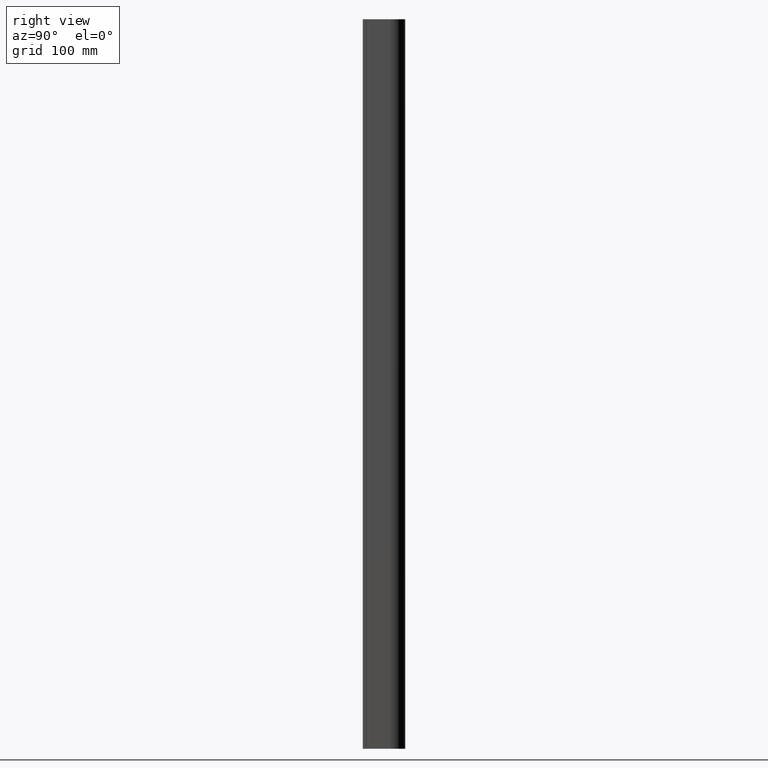
[diagram: clean part render]
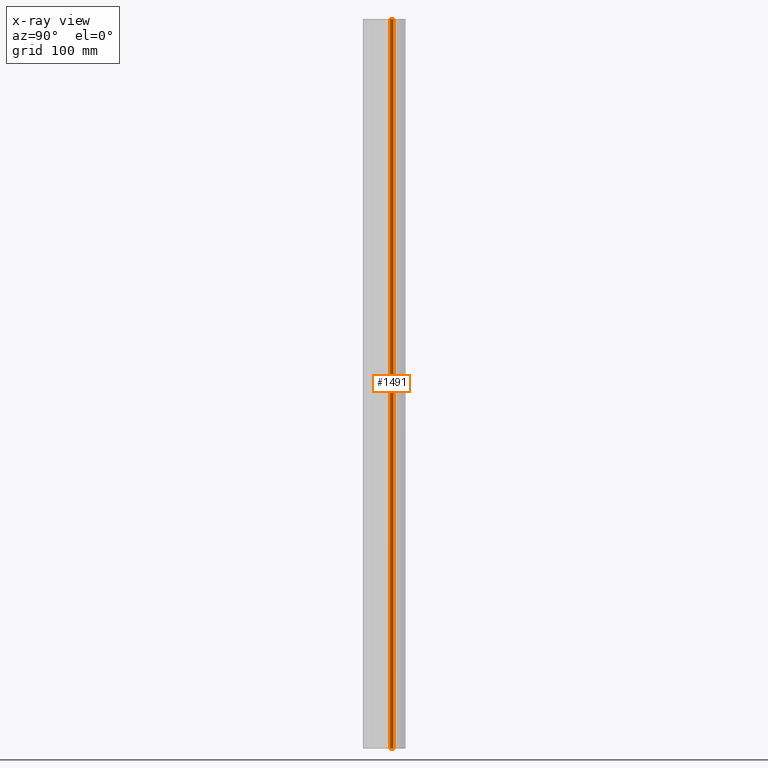
[diagram: x-ray — body ghosted, one internal face saturated and labeled with its STEP entity id]
A machine part, right view, then the same camera in x-ray: the body is ghosted and one INTERNAL B-rep face — a face not visible from any outside direction — is saturated and labeled: STEP entity #1491.
In plain terms, the highlighted cylindrical surface (edge-blend (fillet) strip) has radius 5.125 mm, axis along (-0, -0, 1).
Its self-contained STEP definition (entity closure, byte-faithful):
#116 = CIRCLE ( 'NONE', #698, 5.125000000000000900 ) ;
#180 = DIRECTION ( 'NONE',  ( 1.000000000000000000, 0.0000000000000000000, 0.0000000000000000000 ) ) ;
#233 = DIRECTION ( 'NONE',  ( -0.0000000000000000000, -0.0000000000000000000, 1.000000000000000000 ) ) ;
#285 = DIRECTION ( 'NONE',  ( -0.0000000000000000000, -0.0000000000000000000, 1.000000000000000000 ) ) ;
#299 = CARTESIAN_POINT ( 'NONE',  ( 5.038434137830988000, 20.02030934908758700, 509.5999999999998500 ) ) ;
#345 = EDGE_CURVE ( 'NONE', #917, #1257, #116, .T. ) ;
#438 = EDGE_CURVE ( 'NONE', #1257, #1455, #1181, .T. ) ;
#489 = DIRECTION ( 'NONE',  ( 1.000000000000000000, 0.0000000000000000000, 0.0000000000000000000 ) ) ;
#529 = CIRCLE ( 'NONE', #821, 5.125000000000000900 ) ;
#616 = CARTESIAN_POINT ( 'NONE',  ( 5.038434137830987100, 20.02030934908758700, -99.99999999999997200 ) ) ;
#643 = CARTESIAN_POINT ( 'NONE',  ( 6.032998154092254600, 16.98631469117596600, -99.99999999999997200 ) ) ;
#648 = CARTESIAN_POINT ( 'NONE',  ( 6.032998154092254600, 16.98631469117596600, 509.5999999999998500 ) ) ;
#662 = CARTESIAN_POINT ( 'NONE',  ( 6.032998154092254600, 16.98631469117596600, -99.99999999999997200 ) ) ;
#698 = AXIS2_PLACEMENT_3D ( 'NONE', #1036, #1428, #180 ) ;
#736 = EDGE_LOOP ( 'NONE', ( #984, #1546, #986, #912 ) ) ;
#821 = AXIS2_PLACEMENT_3D ( 'NONE', #834, #233, #489 ) ;
#830 = DIRECTION ( 'NONE',  ( -0.0000000000000000000, -0.0000000000000000000, 1.000000000000000000 ) ) ;
#834 = CARTESIAN_POINT ( 'NONE',  ( 0.9079981540922539300, 16.98631469117596600, 509.5999999999998500 ) ) ;
#844 = VECTOR ( 'NONE', #830, 1000.000000000000000 ) ;
#881 = VECTOR ( 'NONE', #898, 1000.000000000000000 ) ;
#898 = DIRECTION ( 'NONE',  ( -0.0000000000000000000, -0.0000000000000000000, 1.000000000000000000 ) ) ;
#912 = ORIENTED_EDGE ( 'NONE', *, *, #1301, .F. ) ;
#917 = VERTEX_POINT ( 'NONE', #662 ) ;
#929 = VERTEX_POINT ( 'NONE', #648 ) ;
#954 = CARTESIAN_POINT ( 'NONE',  ( 5.038434137830987100, 20.02030934908758700, -99.99999999999997200 ) ) ;
#972 = LINE ( 'NONE', #643, #881 ) ;
#984 = ORIENTED_EDGE ( 'NONE', *, *, #1462, .F. ) ;
#986 = ORIENTED_EDGE ( 'NONE', *, *, #438, .T. ) ;
#1036 = CARTESIAN_POINT ( 'NONE',  ( 0.9079981540922539300, 16.98631469117596600, -99.99999999999997200 ) ) ;
#1144 = CARTESIAN_POINT ( 'NONE',  ( 0.9079981540922539300, 16.98631469117596600, -99.99999999999997200 ) ) ;
#1150 = DIRECTION ( 'NONE',  ( 1.000000000000000000, 0.0000000000000000000, 0.0000000000000000000 ) ) ;
#1181 = LINE ( 'NONE', #616, #844 ) ;
#1199 = CYLINDRICAL_SURFACE ( 'NONE', #1423, 5.125000000000000900 ) ;
#1257 = VERTEX_POINT ( 'NONE', #954 ) ;
#1266 = FACE_OUTER_BOUND ( 'NONE', #736, .T. ) ;
#1301 = EDGE_CURVE ( 'NONE', #929, #1455, #529, .T. ) ;
#1423 = AXIS2_PLACEMENT_3D ( 'NONE', #1144, #285, #1150 ) ;
#1428 = DIRECTION ( 'NONE',  ( -0.0000000000000000000, 0.0000000000000000000, 1.000000000000000000 ) ) ;
#1455 = VERTEX_POINT ( 'NONE', #299 ) ;
#1462 = EDGE_CURVE ( 'NONE', #917, #929, #972, .T. ) ;
#1491 = ADVANCED_FACE ( 'NONE', ( #1266 ), #1199, .T. ) ;
#1546 = ORIENTED_EDGE ( 'NONE', *, *, #345, .T. ) ;